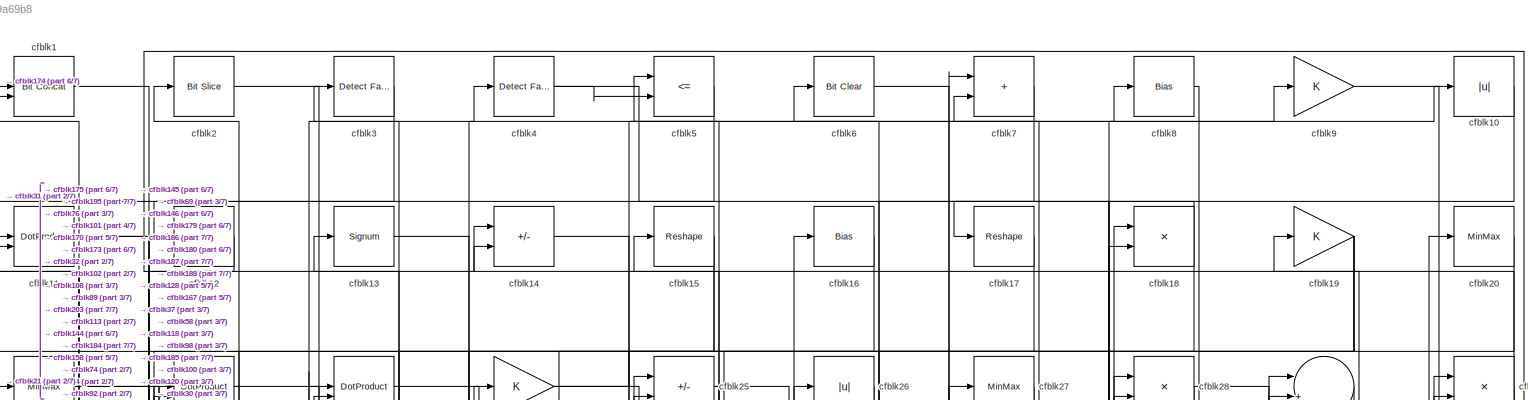
[diagram: root canvas - part 1/7, full width, top band]
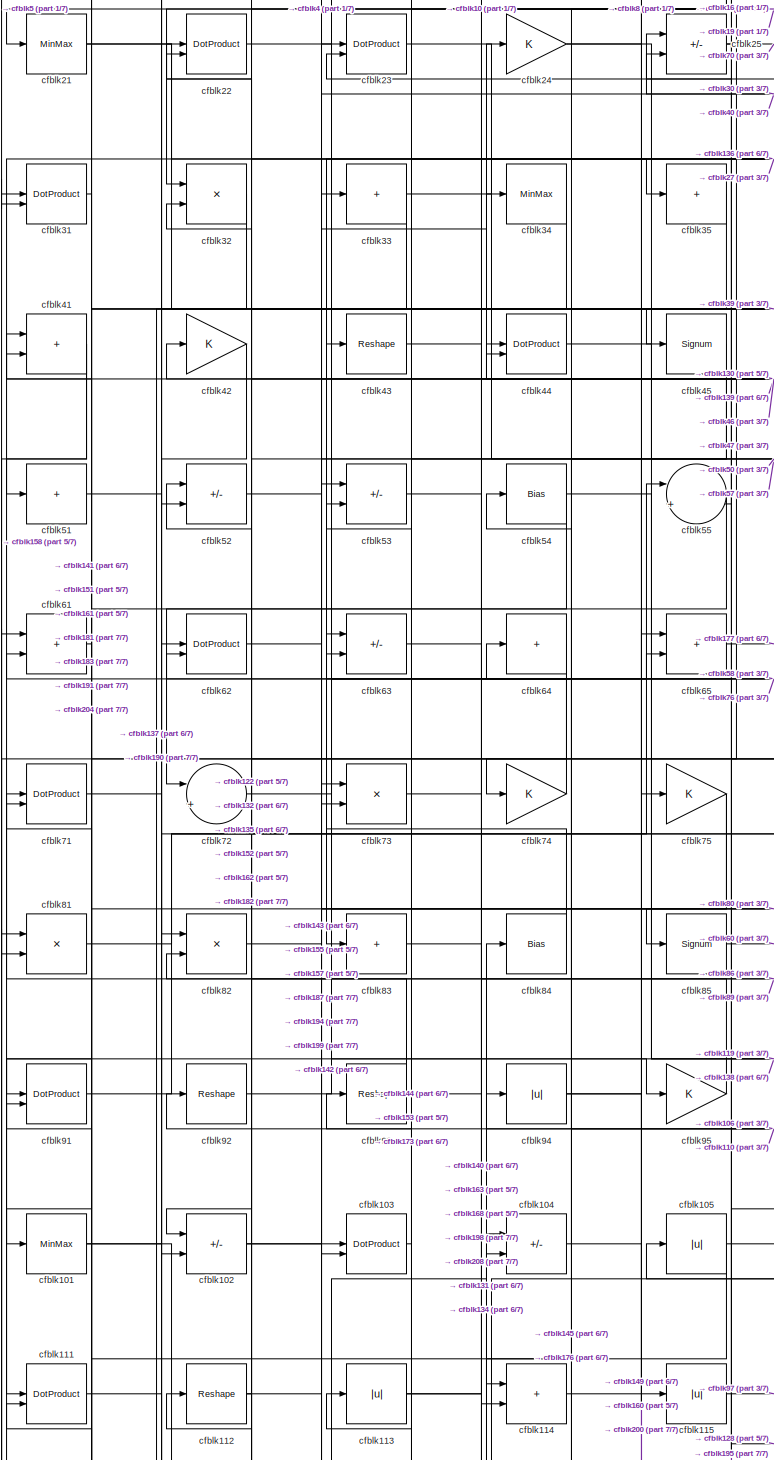
[diagram: root canvas - part 2/7, middle left region]
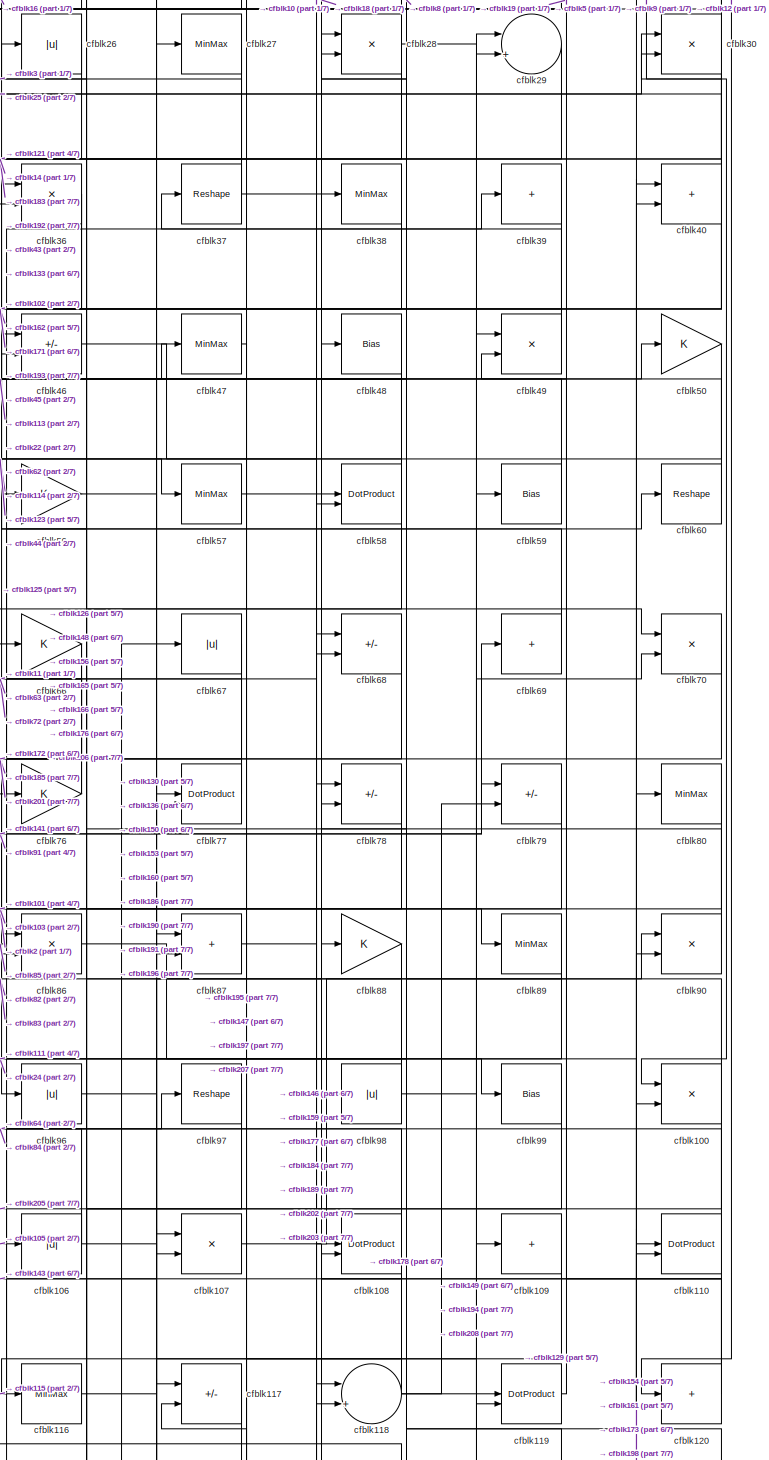
[diagram: root canvas - part 3/7, middle right region]
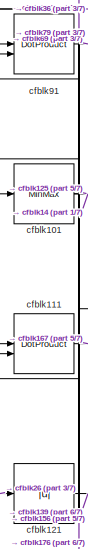
[diagram: root canvas - part 4/7, middle left region]
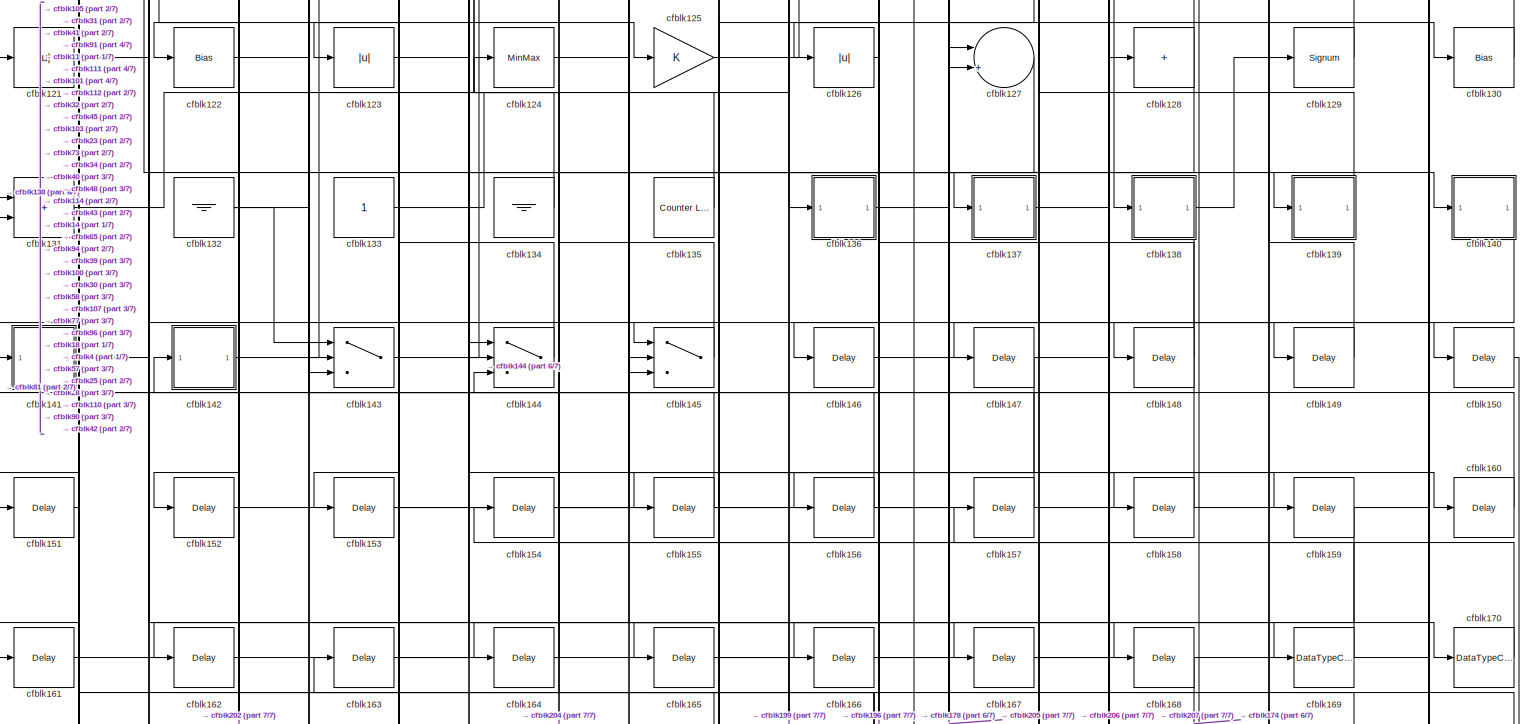
[diagram: root canvas - part 5/7, full width, bottom band]
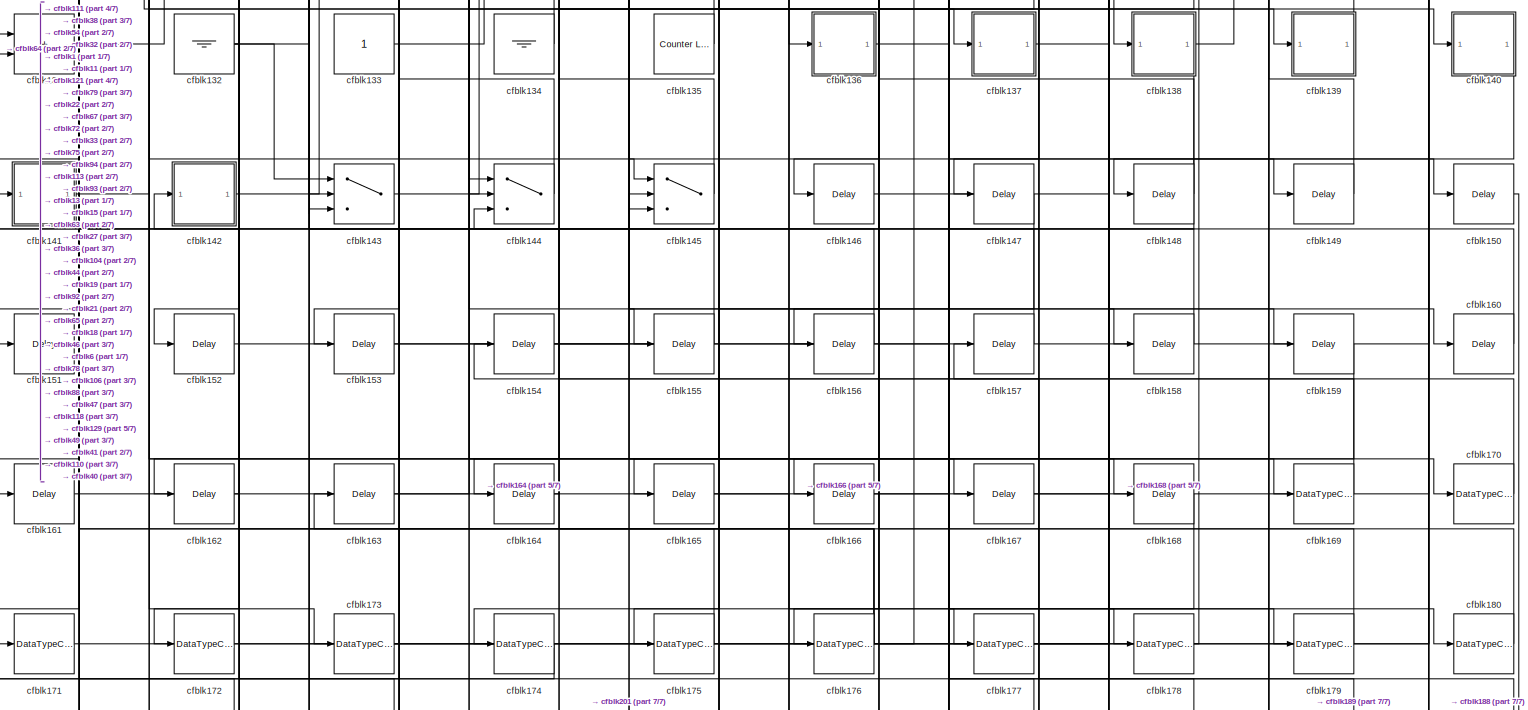
[diagram: root canvas - part 6/7, full width, bottom band]
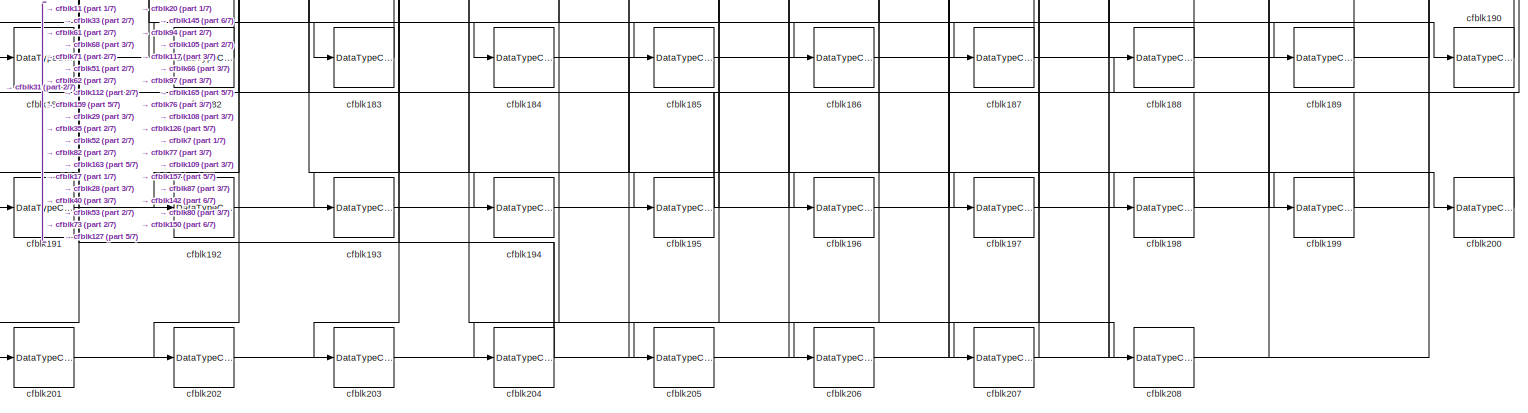
[diagram: root canvas - part 7/7, full width, bottom band]
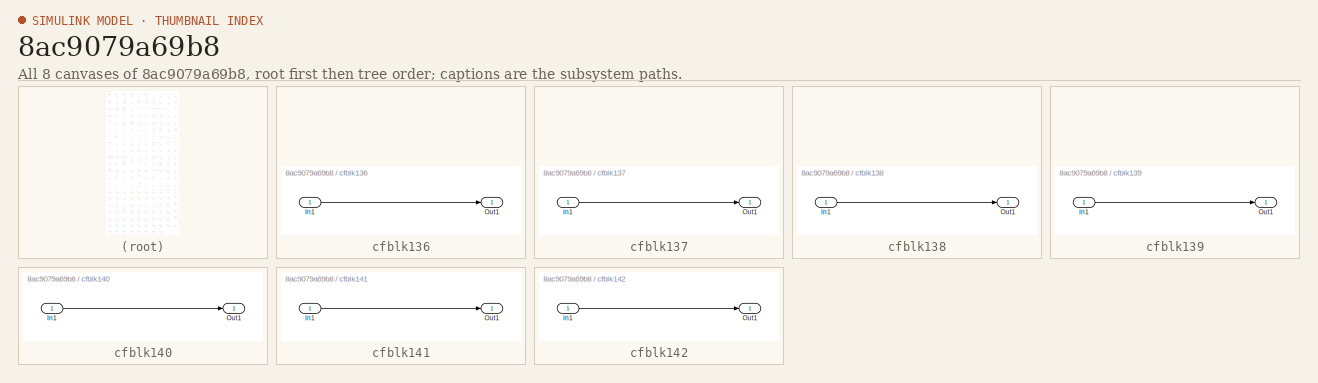
[diagram: thumbnail index - all 8 canvases of the model, root first then tree order]
MODEL slx_8ac9079a69b8
KIND model
CONFIG AbsTol = auto
CONFIG EnableMultiTasking = off
CONFIG FixedStep = auto
CONFIG MaxStep = auto
CONFIG MinStep = auto
CONFIG RelTol = 1e-3
CONFIG SampleTimeConstraint = Unconstrained
CONFIG SolverName = VariableStepAuto
CONFIG StartTime = 0.0
CONFIG StopTime = 10.0
BLOCK [Reference] cfblk1  REF=hdlsllib/Logic and Bit
Operations/Bit Concat
  SourceBlock = hdlsllib/Logic and Bit\nOperations/Bit Concat
  SourceType = Bit Concat
BLOCK [Abs] cfblk10
  SaturateOnIntegerOverflow = off
BLOCK [Product] cfblk100
  Inputs = */
  RndMeth = Zero
  SaturateOnIntegerOverflow = on
BLOCK [MinMax] cfblk101
BLOCK [Sum] cfblk102
  IconShape = rectangular
  Inputs = +-
BLOCK [DotProduct] cfblk103
  OutDataTypeStr = Inherit: Inherit via internal rule
BLOCK [Sum] cfblk104
  IconShape = rectangular
  Inputs = +-
BLOCK [Abs] cfblk105
  SaturateOnIntegerOverflow = off
BLOCK [Abs] cfblk106
  SaturateOnIntegerOverflow = off
BLOCK [Product] cfblk107
  Inputs = */
  RndMeth = Zero
  SaturateOnIntegerOverflow = on
BLOCK [DotProduct] cfblk108
  OutDataTypeStr = Inherit: Inherit via internal rule
BLOCK [Sum] cfblk109
  IconShape = rectangular
  Inputs = +
BLOCK [DotProduct] cfblk11
  OutDataTypeStr = Inherit: Inherit via internal rule
BLOCK [DotProduct] cfblk110
  OutDataTypeStr = Inherit: Inherit via internal rule
BLOCK [DotProduct] cfblk111
  OutDataTypeStr = Inherit: Inherit via internal rule
BLOCK [Reshape] cfblk112
BLOCK [Abs] cfblk113
  SaturateOnIntegerOverflow = off
BLOCK [Sum] cfblk114
  IconShape = rectangular
BLOCK [Abs] cfblk115
  SaturateOnIntegerOverflow = off
BLOCK [MinMax] cfblk116
BLOCK [Sum] cfblk117
  IconShape = rectangular
  Inputs = +-
BLOCK [Sum] cfblk118
  Inputs = |++
BLOCK [DotProduct] cfblk119
  OutDataTypeStr = Inherit: Inherit via internal rule
BLOCK [Sum] cfblk12
  IconShape = rectangular
  Inputs = +
BLOCK [Sum] cfblk120
  IconShape = rectangular
  Inputs = +
BLOCK [Abs] cfblk121
  SaturateOnIntegerOverflow = off
BLOCK [Bias] cfblk122
  Bias = 0.0
  SaturateOnIntegerOverflow = off
BLOCK [Abs] cfblk123
  SaturateOnIntegerOverflow = off
BLOCK [MinMax] cfblk124
BLOCK [Gain] cfblk125
BLOCK [Abs] cfblk126
  SaturateOnIntegerOverflow = off
BLOCK [Sum] cfblk127
  Inputs = |++
BLOCK [Sum] cfblk128
  IconShape = rectangular
  Inputs = +
BLOCK [Signum] cfblk129
BLOCK [Signum] cfblk13
BLOCK [Bias] cfblk130
  Bias = 0.0
  SaturateOnIntegerOverflow = off
BLOCK [Sum] cfblk131
  IconShape = rectangular
BLOCK [Ground] cfblk132
BLOCK [Constant] cfblk133
  SampleTime = -1
BLOCK [Ground] cfblk134
BLOCK [Reference] cfblk135  REF=hdlsllib/Sources/Counter
Limited
  SourceBlock = hdlsllib/Sources/Counter\nLimited
  SourceType = Counter Limited
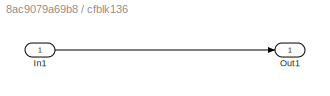
BLOCK [SubSystem] cfblk136
  LibrarySourceBlock = hdlsllib/Ports &\nSubsystems/Subsystem
BLOCK [Inport] cfblk136/In1
BLOCK [Outport] cfblk136/Out1
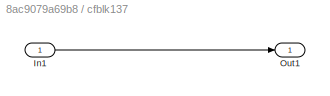
BLOCK [SubSystem] cfblk137
  LibrarySourceBlock = hdlsllib/Ports &\nSubsystems/Subsystem
BLOCK [Inport] cfblk137/In1
BLOCK [Outport] cfblk137/Out1
BLOCK [SubSystem] cfblk138
  LibrarySourceBlock = hdlsllib/Ports &\nSubsystems/Subsystem
BLOCK [Inport] cfblk138/In1
BLOCK [Outport] cfblk138/Out1
BLOCK [SubSystem] cfblk139
  LibrarySourceBlock = hdlsllib/Ports &\nSubsystems/Subsystem
BLOCK [Inport] cfblk139/In1
BLOCK [Outport] cfblk139/Out1
BLOCK [Sum] cfblk14
  IconShape = rectangular
  Inputs = +-
BLOCK [SubSystem] cfblk140
  LibrarySourceBlock = hdlsllib/Ports &\nSubsystems/Subsystem
BLOCK [Inport] cfblk140/In1
BLOCK [Outport] cfblk140/Out1
BLOCK [SubSystem] cfblk141
  LibrarySourceBlock = hdlsllib/Ports &\nSubsystems/Subsystem
BLOCK [Inport] cfblk141/In1
BLOCK [Outport] cfblk141/Out1
BLOCK [SubSystem] cfblk142
  LibrarySourceBlock = hdlsllib/Ports &\nSubsystems/Subsystem
BLOCK [Inport] cfblk142/In1
BLOCK [Outport] cfblk142/Out1
BLOCK [Switch] cfblk143
  InputSameDT = off
  SaturateOnIntegerOverflow = off
BLOCK [Switch] cfblk144
  InputSameDT = off
  SaturateOnIntegerOverflow = off
BLOCK [Switch] cfblk145
  InputSameDT = off
  SaturateOnIntegerOverflow = off
BLOCK [Delay] cfblk146
  InputPortMap = u0
  SampleTime = 1
BLOCK [Delay] cfblk147
  InputPortMap = u0
  SampleTime = 1
BLOCK [Delay] cfblk148
  InputPortMap = u0
  SampleTime = 1
BLOCK [Delay] cfblk149
  InputPortMap = u0
  SampleTime = 1
BLOCK [Reshape] cfblk15
BLOCK [Delay] cfblk150
  InputPortMap = u0
  SampleTime = 1
BLOCK [Delay] cfblk151
  InputPortMap = u0
  SampleTime = 1
BLOCK [Delay] cfblk152
  InputPortMap = u0
  SampleTime = 1
BLOCK [Delay] cfblk153
  InputPortMap = u0
  SampleTime = 1
BLOCK [Delay] cfblk154
  InputPortMap = u0
  SampleTime = 1
BLOCK [Delay] cfblk155
  InputPortMap = u0
  SampleTime = 1
BLOCK [Delay] cfblk156
  InputPortMap = u0
  SampleTime = 1
BLOCK [Delay] cfblk157
  InputPortMap = u0
  SampleTime = 1
BLOCK [Delay] cfblk158
  InputPortMap = u0
  SampleTime = 1
BLOCK [Delay] cfblk159
  InputPortMap = u0
  SampleTime = 1
BLOCK [Bias] cfblk16
  Bias = 0.0
  SaturateOnIntegerOverflow = off
BLOCK [Delay] cfblk160
  InputPortMap = u0
  SampleTime = 1
BLOCK [Delay] cfblk161
  InputPortMap = u0
  SampleTime = 1
BLOCK [Delay] cfblk162
  InputPortMap = u0
  SampleTime = 1
BLOCK [Delay] cfblk163
  InputPortMap = u0
  SampleTime = 1
BLOCK [Delay] cfblk164
  InputPortMap = u0
  SampleTime = 1
BLOCK [Delay] cfblk165
  InputPortMap = u0
  SampleTime = 1
BLOCK [Delay] cfblk166
  InputPortMap = u0
  SampleTime = 1
BLOCK [Delay] cfblk167
  InputPortMap = u0
  SampleTime = 1
BLOCK [Delay] cfblk168
  InputPortMap = u0
  SampleTime = 1
BLOCK [DataTypeConversion] cfblk169
  OutDataTypeStr = uint8
  RndMeth = Floor
  SaturateOnIntegerOverflow = off
BLOCK [Reshape] cfblk17
BLOCK [DataTypeConversion] cfblk170
  OutDataTypeStr = uint8
  RndMeth = Floor
  SaturateOnIntegerOverflow = off
BLOCK [DataTypeConversion] cfblk171
  OutDataTypeStr = uint8
  RndMeth = Floor
  SaturateOnIntegerOverflow = off
BLOCK [DataTypeConversion] cfblk172
  OutDataTypeStr = uint8
  RndMeth = Floor
  SaturateOnIntegerOverflow = off
BLOCK [DataTypeConversion] cfblk173
  RndMeth = Floor
  SaturateOnIntegerOverflow = off
BLOCK [DataTypeConversion] cfblk174
  OutDataTypeStr = uint8
  RndMeth = Floor
  SaturateOnIntegerOverflow = off
BLOCK [DataTypeConversion] cfblk175
  OutDataTypeStr = uint8
  RndMeth = Floor
  SaturateOnIntegerOverflow = off
BLOCK [DataTypeConversion] cfblk176
  RndMeth = Floor
  SaturateOnIntegerOverflow = off
BLOCK [DataTypeConversion] cfblk177
  OutDataTypeStr = uint8
  RndMeth = Floor
  SaturateOnIntegerOverflow = off
BLOCK [DataTypeConversion] cfblk178
  OutDataTypeStr = uint8
  RndMeth = Floor
  SaturateOnIntegerOverflow = off
BLOCK [DataTypeConversion] cfblk179
  OutDataTypeStr = boolean
  RndMeth = Floor
  SaturateOnIntegerOverflow = off
BLOCK [Product] cfblk18
  Inputs = */
  RndMeth = Zero
  SaturateOnIntegerOverflow = on
BLOCK [DataTypeConversion] cfblk180
  OutDataTypeStr = uint8
  RndMeth = Floor
  SaturateOnIntegerOverflow = off
BLOCK [DataTypeConversion] cfblk181
  OutDataTypeStr = uint8
  RndMeth = Floor
  SaturateOnIntegerOverflow = off
BLOCK [DataTypeConversion] cfblk182
  OutDataTypeStr = uint8
  RndMeth = Floor
  SaturateOnIntegerOverflow = off
BLOCK [DataTypeConversion] cfblk183
  OutDataTypeStr = uint8
  RndMeth = Floor
  SaturateOnIntegerOverflow = off
BLOCK [DataTypeConversion] cfblk184
  RndMeth = Floor
  SaturateOnIntegerOverflow = off
BLOCK [DataTypeConversion] cfblk185
  OutDataTypeStr = uint8
  RndMeth = Floor
  SaturateOnIntegerOverflow = off
BLOCK [DataTypeConversion] cfblk186
  OutDataTypeStr = uint8
  RndMeth = Floor
  SaturateOnIntegerOverflow = off
BLOCK [DataTypeConversion] cfblk187
  OutDataTypeStr = uint8
  RndMeth = Floor
  SaturateOnIntegerOverflow = off
BLOCK [DataTypeConversion] cfblk188
  OutDataTypeStr = uint8
  RndMeth = Floor
  SaturateOnIntegerOverflow = off
BLOCK [DataTypeConversion] cfblk189
  OutDataTypeStr = uint8
  RndMeth = Floor
  SaturateOnIntegerOverflow = off
BLOCK [Gain] cfblk19
BLOCK [DataTypeConversion] cfblk190
  OutDataTypeStr = uint8
  RndMeth = Floor
  SaturateOnIntegerOverflow = off
BLOCK [DataTypeConversion] cfblk191
  OutDataTypeStr = uint8
  RndMeth = Floor
  SaturateOnIntegerOverflow = off
BLOCK [DataTypeConversion] cfblk192
  OutDataTypeStr = uint8
  RndMeth = Floor
  SaturateOnIntegerOverflow = off
BLOCK [DataTypeConversion] cfblk193
  OutDataTypeStr = uint8
  RndMeth = Floor
  SaturateOnIntegerOverflow = off
BLOCK [DataTypeConversion] cfblk194
  OutDataTypeStr = uint8
  RndMeth = Floor
  SaturateOnIntegerOverflow = off
BLOCK [DataTypeConversion] cfblk195
  RndMeth = Floor
  SaturateOnIntegerOverflow = off
BLOCK [DataTypeConversion] cfblk196
  OutDataTypeStr = uint8
  RndMeth = Floor
  SaturateOnIntegerOverflow = off
BLOCK [DataTypeConversion] cfblk197
  OutDataTypeStr = uint8
  RndMeth = Floor
  SaturateOnIntegerOverflow = off
BLOCK [DataTypeConversion] cfblk198
  RndMeth = Floor
  SaturateOnIntegerOverflow = off
BLOCK [DataTypeConversion] cfblk199
  OutDataTypeStr = uint8
  RndMeth = Floor
  SaturateOnIntegerOverflow = off
BLOCK [Reference] cfblk2  REF=hdlsllib/Logic and Bit
Operations/Bit Slice
  SourceBlock = hdlsllib/Logic and Bit\nOperations/Bit Slice
  SourceType = Bit Slice
BLOCK [MinMax] cfblk20
BLOCK [DataTypeConversion] cfblk200
  OutDataTypeStr = uint8
  RndMeth = Floor
  SaturateOnIntegerOverflow = off
BLOCK [DataTypeConversion] cfblk201
  RndMeth = Floor
  SaturateOnIntegerOverflow = off
BLOCK [DataTypeConversion] cfblk202
  OutDataTypeStr = uint8
  RndMeth = Floor
  SaturateOnIntegerOverflow = off
BLOCK [DataTypeConversion] cfblk203
  OutDataTypeStr = uint8
  RndMeth = Floor
  SaturateOnIntegerOverflow = off
BLOCK [DataTypeConversion] cfblk204
  RndMeth = Floor
  SaturateOnIntegerOverflow = off
BLOCK [DataTypeConversion] cfblk205
  OutDataTypeStr = uint8
  RndMeth = Floor
  SaturateOnIntegerOverflow = off
BLOCK [DataTypeConversion] cfblk206
  OutDataTypeStr = uint8
  RndMeth = Floor
  SaturateOnIntegerOverflow = off
BLOCK [DataTypeConversion] cfblk207
  OutDataTypeStr = uint8
  RndMeth = Floor
  SaturateOnIntegerOverflow = off
BLOCK [DataTypeConversion] cfblk208
  OutDataTypeStr = uint8
  RndMeth = Floor
  SaturateOnIntegerOverflow = off
BLOCK [MinMax] cfblk21
BLOCK [DotProduct] cfblk22
  OutDataTypeStr = Inherit: Inherit via internal rule
BLOCK [DotProduct] cfblk23
  OutDataTypeStr = Inherit: Inherit via internal rule
BLOCK [Gain] cfblk24
BLOCK [Sum] cfblk25
  IconShape = rectangular
  Inputs = +-
BLOCK [Abs] cfblk26
  SaturateOnIntegerOverflow = off
BLOCK [MinMax] cfblk27
BLOCK [Product] cfblk28
  Inputs = */
  RndMeth = Zero
  SaturateOnIntegerOverflow = on
BLOCK [Sum] cfblk29
  Inputs = |++
BLOCK [Reference] cfblk3  REF=hdlsllib/Logic and Bit
Operations/Detect Fall
Negative
  SourceBlock = hdlsllib/Logic and Bit\nOperations/Detect Fall\nNegative
  SourceType = Detect Fall Negative
BLOCK [Product] cfblk30
  Inputs = */
  RndMeth = Zero
  SaturateOnIntegerOverflow = on
BLOCK [DotProduct] cfblk31
  OutDataTypeStr = Inherit: Inherit via internal rule
BLOCK [Product] cfblk32
  Inputs = */
  RndMeth = Zero
  SaturateOnIntegerOverflow = on
BLOCK [Sum] cfblk33
  IconShape = rectangular
  Inputs = +
BLOCK [MinMax] cfblk34
BLOCK [Sum] cfblk35
  IconShape = rectangular
  Inputs = +
BLOCK [Product] cfblk36
  Inputs = */
  RndMeth = Zero
  SaturateOnIntegerOverflow = on
BLOCK [Reshape] cfblk37
BLOCK [MinMax] cfblk38
BLOCK [Sum] cfblk39
  IconShape = rectangular
  Inputs = +
BLOCK [Reference] cfblk4  REF=hdlsllib/Logic and Bit
Operations/Detect Fall
Nonpositive
  SourceBlock = hdlsllib/Logic and Bit\nOperations/Detect Fall\nNonpositive
  SourceType = Detect Fall Nonpositive
BLOCK [Sum] cfblk40
  IconShape = rectangular
BLOCK [Sum] cfblk41
  IconShape = rectangular
BLOCK [Gain] cfblk42
BLOCK [Reshape] cfblk43
BLOCK [DotProduct] cfblk44
  OutDataTypeStr = Inherit: Inherit via internal rule
BLOCK [Signum] cfblk45
BLOCK [Sum] cfblk46
  IconShape = rectangular
  Inputs = +-
BLOCK [MinMax] cfblk47
BLOCK [Bias] cfblk48
  Bias = 0.0
  SaturateOnIntegerOverflow = off
BLOCK [Product] cfblk49
  Inputs = */
  RndMeth = Zero
  SaturateOnIntegerOverflow = on
BLOCK [RelationalOperator] cfblk5
  InputSameDT = off
  Operator = <=
  OutDataTypeStr = boolean
BLOCK [Gain] cfblk50
BLOCK [Sum] cfblk51
  IconShape = rectangular
  Inputs = +
BLOCK [Sum] cfblk52
  IconShape = rectangular
  Inputs = +-
BLOCK [Sum] cfblk53
  IconShape = rectangular
  Inputs = +-
BLOCK [Bias] cfblk54
  Bias = 0.0
  SaturateOnIntegerOverflow = off
BLOCK [Sum] cfblk55
  Inputs = |++
BLOCK [Gain] cfblk56
BLOCK [MinMax] cfblk57
BLOCK [DotProduct] cfblk58
  OutDataTypeStr = Inherit: Inherit via internal rule
BLOCK [Bias] cfblk59
  Bias = 0.0
  SaturateOnIntegerOverflow = off
BLOCK [Reference] cfblk6  REF=simulink/Logic and Bit
Operations/Bit Clear
  LibrarySourceBlock = hdlsllib/Logic and Bit\nOperations/Bit Clear
  SourceBlock = simulink/Logic and Bit\nOperations/Bit Clear
  SourceType = Bit Clear
BLOCK [Reshape] cfblk60
BLOCK [Sum] cfblk61
  IconShape = rectangular
BLOCK [DotProduct] cfblk62
  OutDataTypeStr = Inherit: Inherit via internal rule
BLOCK [Sum] cfblk63
  IconShape = rectangular
  Inputs = +-
BLOCK [Sum] cfblk64
  IconShape = rectangular
  Inputs = +
BLOCK [Sum] cfblk65
  IconShape = rectangular
BLOCK [Gain] cfblk66
BLOCK [Abs] cfblk67
  SaturateOnIntegerOverflow = off
BLOCK [Sum] cfblk68
  IconShape = rectangular
  Inputs = +-
BLOCK [Sum] cfblk69
  IconShape = rectangular
  Inputs = +
BLOCK [Sum] cfblk7
  IconShape = rectangular
BLOCK [Product] cfblk70
  Inputs = */
  RndMeth = Zero
  SaturateOnIntegerOverflow = on
BLOCK [DotProduct] cfblk71
  OutDataTypeStr = Inherit: Inherit via internal rule
BLOCK [Sum] cfblk72
  Inputs = |++
BLOCK [Product] cfblk73
  Inputs = */
  RndMeth = Zero
  SaturateOnIntegerOverflow = on
BLOCK [Gain] cfblk74
BLOCK [Gain] cfblk75
BLOCK [Gain] cfblk76
BLOCK [DotProduct] cfblk77
  OutDataTypeStr = Inherit: Inherit via internal rule
BLOCK [Sum] cfblk78
  IconShape = rectangular
  Inputs = +-
BLOCK [Sum] cfblk79
  IconShape = rectangular
  Inputs = +-
BLOCK [Bias] cfblk8
  Bias = 0.0
  SaturateOnIntegerOverflow = off
BLOCK [MinMax] cfblk80
BLOCK [Product] cfblk81
  Inputs = */
  RndMeth = Zero
  SaturateOnIntegerOverflow = on
BLOCK [Product] cfblk82
  Inputs = */
  RndMeth = Zero
  SaturateOnIntegerOverflow = on
BLOCK [Sum] cfblk83
  IconShape = rectangular
  Inputs = +
BLOCK [Bias] cfblk84
  Bias = 0.0
  SaturateOnIntegerOverflow = off
BLOCK [Signum] cfblk85
BLOCK [Product] cfblk86
  Inputs = */
  RndMeth = Zero
  SaturateOnIntegerOverflow = on
BLOCK [Sum] cfblk87
  IconShape = rectangular
BLOCK [Gain] cfblk88
BLOCK [MinMax] cfblk89
BLOCK [Gain] cfblk9
BLOCK [Product] cfblk90
  Inputs = */
  RndMeth = Zero
  SaturateOnIntegerOverflow = on
BLOCK [DotProduct] cfblk91
  OutDataTypeStr = Inherit: Inherit via internal rule
BLOCK [Reshape] cfblk92
BLOCK [Reshape] cfblk93
BLOCK [Abs] cfblk94
  SaturateOnIntegerOverflow = off
BLOCK [Gain] cfblk95
BLOCK [Abs] cfblk96
  SaturateOnIntegerOverflow = off
BLOCK [Reshape] cfblk97
BLOCK [Abs] cfblk98
  SaturateOnIntegerOverflow = off
BLOCK [Bias] cfblk99
  Bias = 0.0
  SaturateOnIntegerOverflow = off
NET cfblk100:1 -> cfblk156:1, cfblk48:1
NET cfblk101:1 -> cfblk125:1, cfblk14:1
NET cfblk102:1 -> cfblk30:2, cfblk4:1
LINE cfblk103:1 -> cfblk23:2
LINE cfblk104:1 -> cfblk149:1
NET cfblk105:1 -> cfblk106:1, cfblk151:1
NET cfblk106:1 -> cfblk150:1, cfblk64:1
LINE cfblk107:1 -> cfblk90:1
NET cfblk108:1 -> cfblk206:1, cfblk2:1
LINE cfblk109:1 -> cfblk207:1
LINE cfblk10:1 -> cfblk58:2
NET cfblk110:1 -> cfblk108:2, cfblk84:1
LINE cfblk111:1 -> cfblk167:1
NET cfblk112:1 -> cfblk152:1, cfblk34:1
NET cfblk113:1 -> cfblk10:1, cfblk46:1
LINE cfblk114:1 -> cfblk115:1
LINE cfblk115:1 -> cfblk97:1
LINE cfblk116:1 -> cfblk50:1
LINE cfblk117:1 -> cfblk195:1
NET cfblk118:1 -> cfblk18:1, cfblk70:2, cfblk79:2
LINE cfblk119:1 -> cfblk49:2
NET cfblk11:1 -> cfblk145:1, cfblk170:1
NET cfblk120:1 -> cfblk19:1, cfblk5:1
LINE cfblk121:1 -> cfblk139:1
LINE cfblk122:1 -> cfblk73:1
LINE cfblk123:1 -> cfblk155:1
LINE cfblk124:1 -> cfblk169:1
LINE cfblk125:1 -> cfblk39:1
LINE cfblk126:1 -> cfblk196:1
LINE cfblk127:1 -> cfblk204:1
NET cfblk128:1 -> cfblk164:1, cfblk25:1
LINE cfblk129:1 -> cfblk28:1
LINE cfblk12:1 -> cfblk120:1
LINE cfblk130:1 -> cfblk42:1
LINE cfblk131:1 -> cfblk104:2
NET cfblk132:1 -> cfblk143:1, cfblk22:1, cfblk33:1
LINE cfblk133:1 -> cfblk36:2
LINE cfblk134:1 -> cfblk104:1
LINE cfblk135:1 -> cfblk92:1
LINE cfblk136/In1:1 -> cfblk136/Out1:1
LINE cfblk136:1 -> cfblk88:1
LINE cfblk137/In1:1 -> cfblk137/Out1:1
LINE cfblk137:1 -> cfblk179:1
LINE cfblk138/In1:1 -> cfblk138/Out1:1
NET cfblk138:1 -> cfblk129:1, cfblk131:1
LINE cfblk139/In1:1 -> cfblk139/Out1:1
LINE cfblk139:1 -> cfblk41:1
LINE cfblk13:1 -> cfblk144:1
LINE cfblk140/In1:1 -> cfblk140/Out1:1
LINE cfblk140:1 -> cfblk148:1
LINE cfblk141/In1:1 -> cfblk141/Out1:1
LINE cfblk141:1 -> cfblk79:1
LINE cfblk142/In1:1 -> cfblk142/Out1:1
LINE cfblk142:1 -> cfblk94:1
LINE cfblk143:1 -> cfblk27:1
LINE cfblk144:1 -> cfblk93:1
LINE cfblk145:1 -> cfblk54:1
LINE cfblk146:1 -> cfblk118:2
LINE cfblk147:1 -> cfblk175:1
LINE cfblk148:1 -> cfblk46:2
LINE cfblk149:1 -> cfblk49:1
LINE cfblk14:1 -> cfblk158:1
LINE cfblk150:1 -> cfblk188:1
LINE cfblk151:1 -> cfblk41:2
LINE cfblk152:1 -> cfblk65:1
LINE cfblk153:1 -> cfblk107:1
LINE cfblk154:1 -> cfblk110:2
LINE cfblk155:1 -> cfblk23:1
LINE cfblk156:1 -> cfblk91:2
LINE cfblk157:1 -> cfblk103:1
LINE cfblk158:1 -> cfblk81:1
LINE cfblk159:1 -> cfblk202:1
NET cfblk15:1 -> cfblk144:2, cfblk21:1
LINE cfblk160:1 -> cfblk77:1
LINE cfblk161:1 -> cfblk90:2
LINE cfblk162:1 -> cfblk32:2
LINE cfblk163:1 -> cfblk114:2
LINE cfblk164:1 -> cfblk144:3
LINE cfblk165:1 -> cfblk199:1
LINE cfblk166:1 -> cfblk178:1
LINE cfblk167:1 -> cfblk18:2
LINE cfblk168:1 -> cfblk174:1
LINE cfblk169:1 -> cfblk154:1
LINE cfblk16:1 -> cfblk32:1
LINE cfblk170:1 -> cfblk124:1
LINE cfblk171:1 -> cfblk110:1
LINE cfblk172:1 -> cfblk38:1
NET cfblk173:1 -> cfblk113:1, cfblk40:2
LINE cfblk174:1 -> cfblk1:1
LINE cfblk175:1 -> cfblk1:2
NET cfblk176:1 -> cfblk111:2, cfblk44:2, cfblk67:1, cfblk72:2
LINE cfblk177:1 -> cfblk78:1
LINE cfblk178:1 -> cfblk78:2
LINE cfblk179:1 -> cfblk6:1
LINE cfblk17:1 -> cfblk203:1
LINE cfblk180:1 -> cfblk13:1
LINE cfblk181:1 -> cfblk62:1
LINE cfblk182:1 -> cfblk61:1
LINE cfblk183:1 -> cfblk61:2
NET cfblk184:1 -> cfblk108:1, cfblk197:1
LINE cfblk185:1 -> cfblk20:1
LINE cfblk186:1 -> cfblk77:2
LINE cfblk187:1 -> cfblk7:1
LINE cfblk188:1 -> cfblk7:2
LINE cfblk189:1 -> cfblk142:1
NET cfblk18:1 -> cfblk146:1, cfblk17:1
LINE cfblk190:1 -> cfblk87:1
LINE cfblk191:1 -> cfblk87:2
LINE cfblk192:1 -> cfblk76:1
LINE cfblk193:1 -> cfblk29:1
LINE cfblk194:1 -> cfblk29:2
NET cfblk195:1 -> cfblk105:1, cfblk112:1, cfblk11:2
LINE cfblk196:1 -> cfblk117:1
LINE cfblk197:1 -> cfblk117:2
NET cfblk198:1 -> cfblk31:1, cfblk40:1
LINE cfblk199:1 -> cfblk53:1
NET cfblk19:1 -> cfblk102:1, cfblk145:3, cfblk74:1
LINE cfblk1:1 -> cfblk173:1
LINE cfblk200:1 -> cfblk53:2
NET cfblk201:1 -> cfblk145:2, cfblk66:1, cfblk80:1
LINE cfblk202:1 -> cfblk68:1
LINE cfblk203:1 -> cfblk68:2
NET cfblk204:1 -> cfblk163:1, cfblk71:2
LINE cfblk205:1 -> cfblk127:1
LINE cfblk206:1 -> cfblk127:2
LINE cfblk207:1 -> cfblk157:1
LINE cfblk208:1 -> cfblk109:1
LINE cfblk20:1 -> cfblk184:1
NET cfblk21:1 -> cfblk136:1, cfblk83:1
LINE cfblk22:1 -> cfblk95:1
LINE cfblk23:1 -> cfblk75:1
NET cfblk24:1 -> cfblk119:1, cfblk8:1
NET cfblk25:1 -> cfblk55:2, cfblk70:1
LINE cfblk26:1 -> cfblk121:1
LINE cfblk27:1 -> cfblk43:1
NET cfblk28:1 -> cfblk100:2, cfblk183:1
LINE cfblk29:1 -> cfblk192:1
LINE cfblk2:1 -> cfblk89:1
NET cfblk30:1 -> cfblk14:2, cfblk165:1, cfblk166:1
LINE cfblk31:1 -> cfblk161:1
LINE cfblk32:1 -> cfblk137:1
NET cfblk33:1 -> cfblk191:1, cfblk35:1
LINE cfblk34:1 -> cfblk153:1
LINE cfblk35:1 -> cfblk182:1
NET cfblk36:1 -> cfblk143:2, cfblk91:1
NET cfblk37:1 -> cfblk3:1, cfblk9:1
LINE cfblk38:1 -> cfblk171:1
LINE cfblk39:1 -> cfblk45:1
LINE cfblk3:1 -> cfblk12:1
NET cfblk40:1 -> cfblk102:2, cfblk162:1, cfblk193:1, cfblk25:2, cfblk30:1
NET cfblk41:1 -> cfblk51:1, cfblk81:2
LINE cfblk42:1 -> cfblk52:2
LINE cfblk43:1 -> cfblk168:1
LINE cfblk44:1 -> cfblk57:1
NET cfblk45:1 -> cfblk122:1, cfblk73:2
LINE cfblk46:1 -> cfblk118:1
LINE cfblk47:1 -> cfblk147:1
LINE cfblk48:1 -> cfblk123:1
LINE cfblk49:1 -> cfblk37:1
NET cfblk4:1 -> cfblk128:1, cfblk5:2
LINE cfblk50:1 -> cfblk114:1
LINE cfblk51:1 -> cfblk190:1
LINE cfblk52:1 -> cfblk187:1
LINE cfblk53:1 -> cfblk198:1
NET cfblk54:1 -> cfblk138:1, cfblk141:1
LINE cfblk55:1 -> cfblk72:1
LINE cfblk56:1 -> cfblk119:2
LINE cfblk57:1 -> cfblk159:1
NET cfblk58:1 -> cfblk126:1, cfblk22:2, cfblk44:1
LINE cfblk59:1 -> cfblk28:2
LINE cfblk5:1 -> cfblk31:2
LINE cfblk60:1 -> cfblk24:1
LINE cfblk61:1 -> cfblk181:1
LINE cfblk62:1 -> cfblk47:1
LINE cfblk63:1 -> cfblk140:1
LINE cfblk64:1 -> cfblk131:2
LINE cfblk65:1 -> cfblk177:1
NET cfblk66:1 -> cfblk185:1, cfblk96:1
LINE cfblk67:1 -> cfblk172:1
LINE cfblk68:1 -> cfblk201:1
LINE cfblk69:1 -> cfblk16:1
LINE cfblk6:1 -> cfblk180:1
LINE cfblk70:1 -> cfblk86:1
LINE cfblk71:1 -> cfblk82:1
LINE cfblk72:1 -> cfblk58:1
LINE cfblk73:1 -> cfblk208:1
LINE cfblk74:1 -> cfblk52:1
NET cfblk75:1 -> cfblk143:3, cfblk85:1
NET cfblk76:1 -> cfblk11:1, cfblk63:2
LINE cfblk77:1 -> cfblk36:1
LINE cfblk78:1 -> cfblk176:1
LINE cfblk79:1 -> cfblk101:1
LINE cfblk7:1 -> cfblk186:1
LINE cfblk80:1 -> cfblk103:2
LINE cfblk81:1 -> cfblk55:1
LINE cfblk82:1 -> cfblk194:1
LINE cfblk83:1 -> cfblk86:2
LINE cfblk84:1 -> cfblk63:1
LINE cfblk85:1 -> cfblk60:1
LINE cfblk86:1 -> cfblk99:1
LINE cfblk87:1 -> cfblk189:1
LINE cfblk88:1 -> cfblk111:1
NET cfblk89:1 -> cfblk107:2, cfblk82:2
LINE cfblk8:1 -> cfblk98:1
LINE cfblk90:1 -> cfblk26:1
LINE cfblk91:1 -> cfblk69:1
LINE cfblk92:1 -> cfblk15:1
NET cfblk93:1 -> cfblk62:2, cfblk65:2
NET cfblk94:1 -> cfblk160:1, cfblk200:1
LINE cfblk95:1 -> cfblk71:1
LINE cfblk96:1 -> cfblk130:1
LINE cfblk97:1 -> cfblk205:1
NET cfblk98:1 -> cfblk56:1, cfblk59:1
LINE cfblk99:1 -> cfblk116:1
LINE cfblk9:1 -> cfblk100:1
note: NET lines group one-source signal fan-out (src -> all destinations, sorted); 1:1 wires keep LINE
